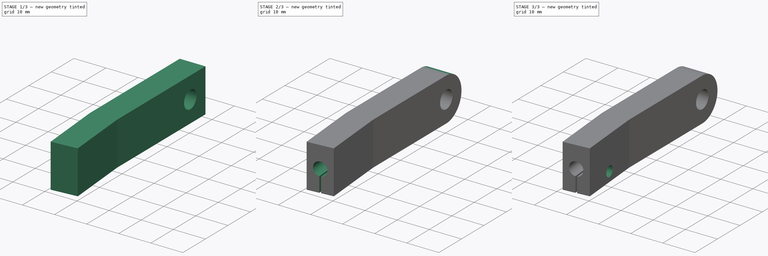
[diagram: build sequence overview — one tinted view per stage of 3, left to right]
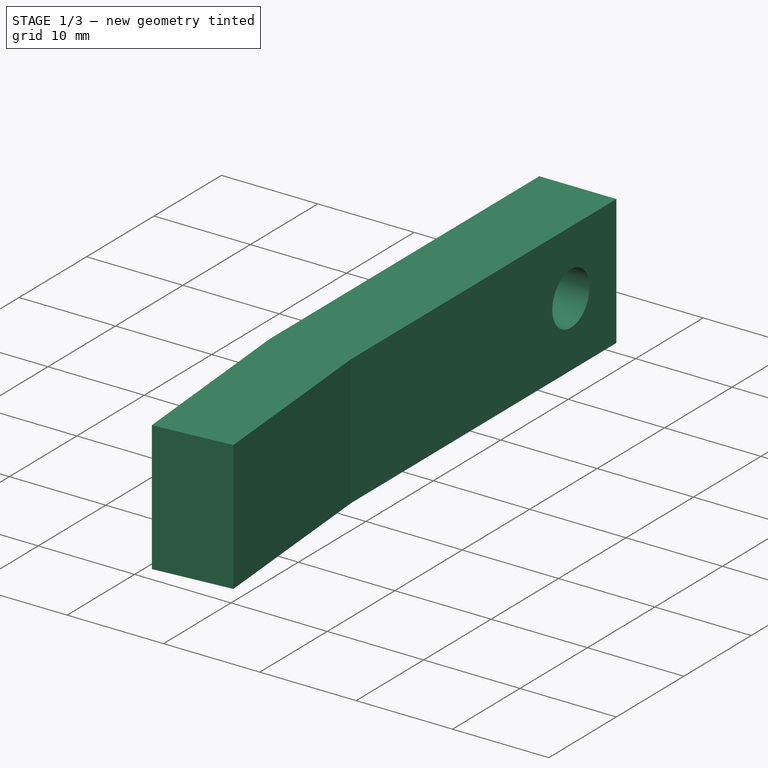
[diagram: stage 1 of 3 — iso view after this stage's code; geometry added in this stage tinted green]
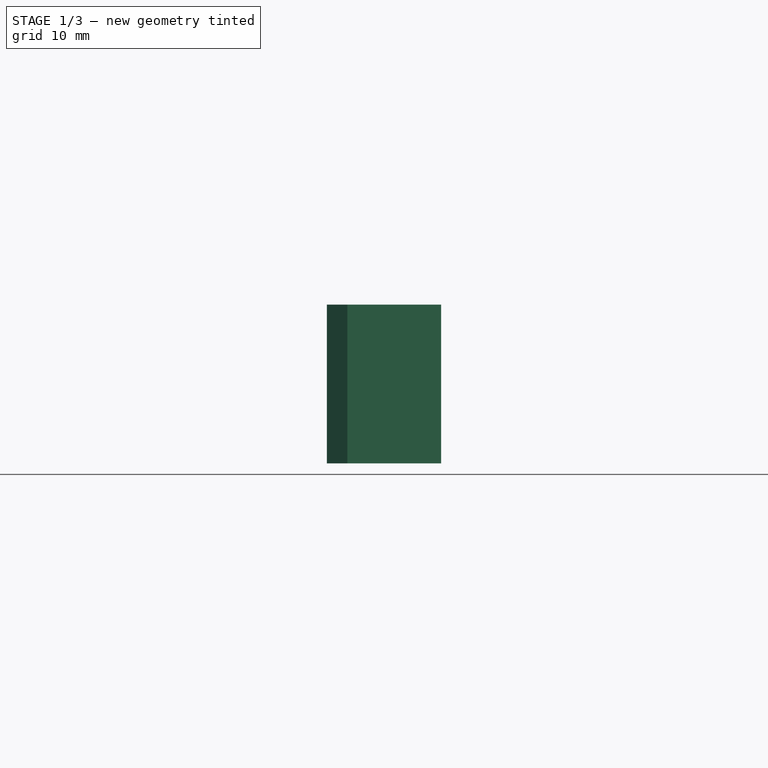
[diagram: stage 1 of 3 — front view after this stage's code; geometry added in this stage tinted green]
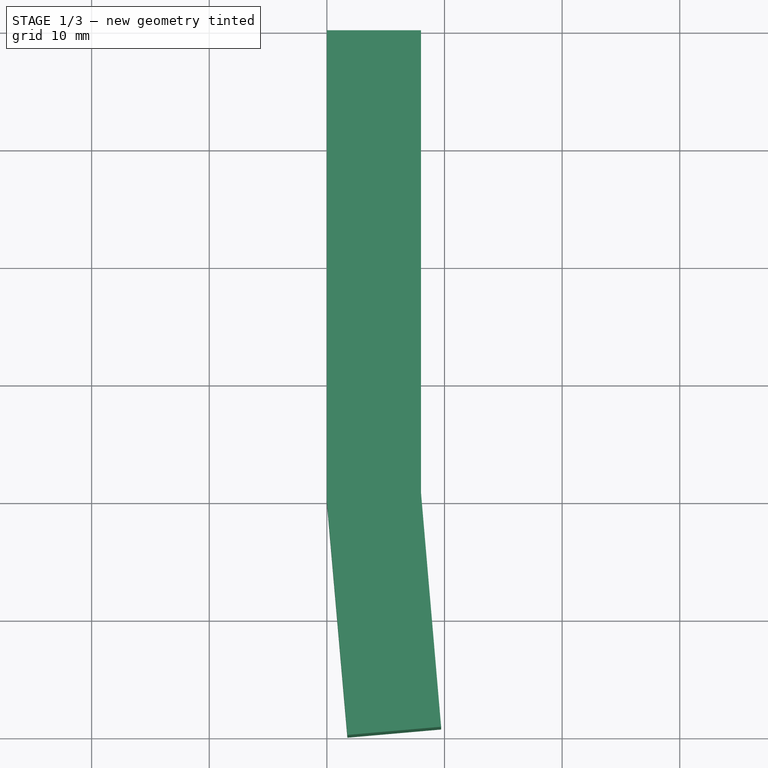
[diagram: stage 1 of 3 — top view after this stage's code; geometry added in this stage tinted green]
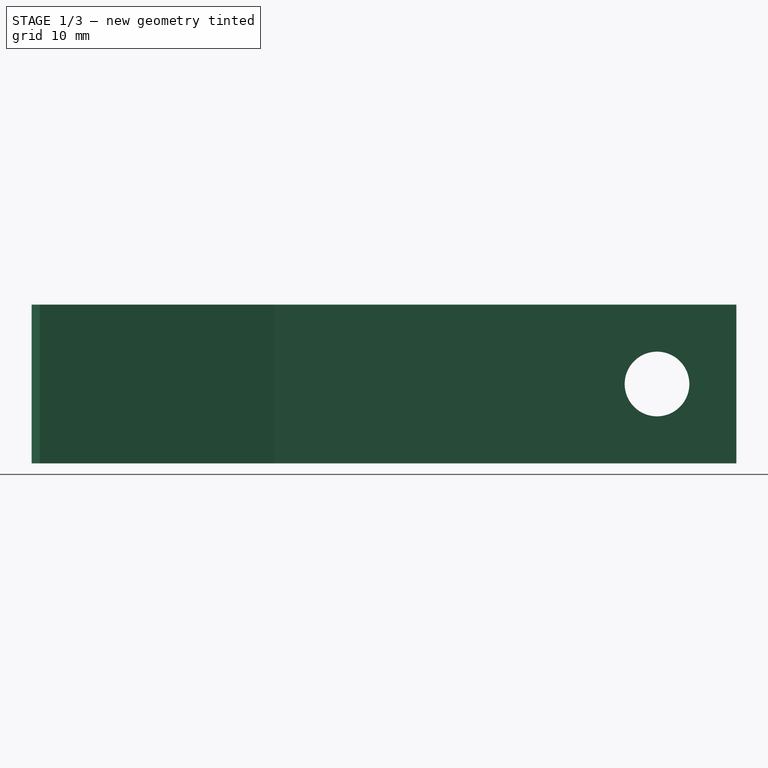
[diagram: stage 1 of 3 — right view after this stage's code; geometry added in this stage tinted green]
FCSTD DOCUMENT  (FreeCAD 1.0R39319 (Git))
Label: giant_front_fender_replace
License: All rights reserved
LicenseURL: https://en.wikipedia.org/wiki/All_rights_reserved
objects: Sketcher::SketchObject×6, PartDesign::Pocket×5, Spreadsheet::Sheet×1, PartDesign::Pad×1, PartDesign::Body×1
note: 31 computed .brp shape members not serialized (recipe doc carries the construction recipe); baked Part::Feature solids carry a one-line shape summary decoded from their .brp

FEATURE [Spreadsheet::Sheet] Spreadsheet  label="settings"
  cells = A1='Front section length; B1(FrontSectionLength)=40; C1='Mount hole diameter; D1(MountHoleDia)=5.5; E1='Rod hole diameter; F1(RodHoleDia)=4.2; G1='Rod tension hole X; H1(RodTensionHoleX)=10; A2='Front section width; B2(FrontSectionWidth)=8; E2='Rod hole Gap; F2(RodHoleGap)=0.5; G2='Rod tension hole Y; H2(RodTensionHoleY)=3; A3='Back section length; B3(BackSectionLength)=20; G3='Rod tension hole diameter; H3(RodTensionHoleDiameter)=3.2; A4='Back section width; B4(BackSectionWidth)=8; G4='Rod tension hex diameter; H4(RodTensionHexDiameter)=5.8; A5='Back section fillet; B5(BackFillet)=2; G5='Rod tension hex depth; H5(RodTensionHexDepth)=2.5; A6='Wall thickness; B6(WallThickness)=4; A7='Front to back angle; B7(FrontToBackAngle)=175; A10='Calculations; A11='Height; B11(Height)==WallThickness * 2 + MountHoleDia; C11='Mount fillet; D11(MountFillet)==WallThickness
FEATURE [Sketcher::SketchObject] Sketch
  ArcFitTolerance = 1e-06
  AttachmentSupport = -> [XY_Plane]
  FullyConstrained = true
  MakeInternals = false
  MapMode = 5
  expr: Constraints[10] = Spreadsheet.FrontSectionWidth
  expr: Constraints[11] = Spreadsheet.FrontSectionLength
  expr: Constraints[12] = Spreadsheet.FrontToBackAngle
  expr: Constraints[13] = Spreadsheet.BackSectionLength
  expr: Constraints[15] = Spreadsheet.BackSectionWidth
  expr: Constraints[18] = 90
  sketch-geometry (7):
    g0: LineSegment StartX=0 StartY=0 StartZ=0 EndX=0 EndY=-40 EndZ=0
    g1: LineSegment StartX=0 StartY=-40 StartZ=0 EndX=1.74311 EndY=-59.9239 EndZ=0
    g2: LineSegment StartX=1.74311 StartY=-59.9239 StartZ=0 EndX=9.71267 EndY=-59.2266 EndZ=0
    g3: LineSegment StartX=9.71267 StartY=-59.2266 StartZ=0 EndX=8 EndY=-39.3001 EndZ=0
    g4: LineSegment StartX=8 StartY=-39.3001 StartZ=0 EndX=8 EndY=0 EndZ=0
    g5: LineSegment StartX=8 StartY=0 StartZ=0 EndX=0 EndY=0 EndZ=0
    g6: LineSegment [constr] StartX=0 StartY=-40 StartZ=0 EndX=8 EndY=-39.3001 EndZ=0
  constraints (19):
    c: Coincident(g-1,g0)
    c: PointOnObject(g0,g-2)
    c: Coincident(g0,g1)
    c: Coincident(g1,g2)
    c: Coincident(g2,g3)
    c: Coincident(g3,g4)
    c: PointOnObject(g4,g-1)
    c: Vertical(g4)
    c: Coincident(g4,g5)
    c: Coincident(g5,g0)
    c: DistanceX(g5,g5) = 8
    c: DistanceY(g0,g0) = 40
    c: Angle(g1,g0) = 3.05433
    c: Distance(g1) = 20
    c: Angle(g2,g1) = 1.5708
    c: Distance(g2) = 8
    c: Coincident(g6,g0)
    c: Coincident(g6,g3)
    c: Angle(g1,g6) = 1.5708
FEATURE [PartDesign::Pad] Pad  label="MainBody"
  Direction = (0,0,1)
  Length = 13.5
  Length2 = 10
  Profile = -> Sketch
  ReferenceAxis = -> Sketch [N_Axis]
  Refine = true
  Suppressed = false
  Type = 0
  expr: Length = Spreadsheet.Height
FEATURE [Sketcher::SketchObject] Sketch001
  ArcFitTolerance = 1e-06
  AttachmentSupport = -> [Pad]
  FullyConstrained = true
  MakeInternals = false
  MapMode = 5
  Placement = pos=(0,0,0) rot=(0.57735,-0.57735,-0.57735;2.0944rad)
  expr: Constraints[10] = Spreadsheet.MountHoleDia / 2 + Spreadsheet.WallThickness
  expr: Constraints[12] = Spreadsheet.MountHoleDia
  sketch-geometry (5):
    g0: LineSegment [constr] StartX=0 StartY=0 StartZ=0 EndX=6.75 EndY=0 EndZ=0
    g1: LineSegment [constr] StartX=6.75 StartY=0 StartZ=0 EndX=6.75 EndY=6.75 EndZ=0
    g2: LineSegment [constr] StartX=6.75 StartY=6.75 StartZ=0 EndX=0 EndY=6.75 EndZ=0
    g3: LineSegment [constr] StartX=0 StartY=6.75 StartZ=0 EndX=0 EndY=0 EndZ=0
    g4: Circle CenterX=6.75 CenterY=6.75 CenterZ=0 NormalX=0 NormalY=0 NormalZ=1 AngleXU=0 Radius=2.75
  constraints (13):
    c: Coincident(g0,g1)
    c: Coincident(g1,g2)
    c: Coincident(g2,g3)
    c: Coincident(g3,g0)
    c: Horizontal(g0)
    c: Horizontal(g2)
    c: Vertical(g1)
    c: Vertical(g3)
    c: Coincident(g0,g-1)
    c: Equal(g1,g2)
    c: DistanceX(g0,g0) = 6.75
    c: Coincident(g4,g1)
    c: Diameter(g4) = 5.5
FEATURE [PartDesign::Pocket] Pocket  label="FrameMountHole"
  BaseFeature = -> Pad
  Direction = (1,0,0)
  Length = 5
  Length2 = 5
  Profile = -> Sketch001
  ReferenceAxis = -> Sketch001 [N_Axis]
  Refine = true
  Suppressed = false
  Type = 1
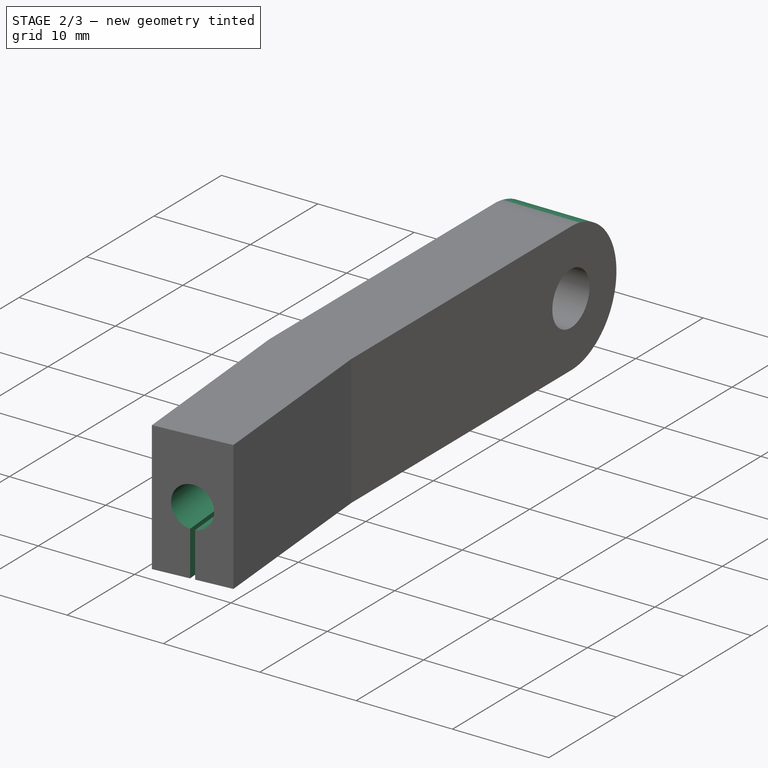
[diagram: stage 2 of 3 — iso view after this stage's code; geometry added in this stage tinted green]
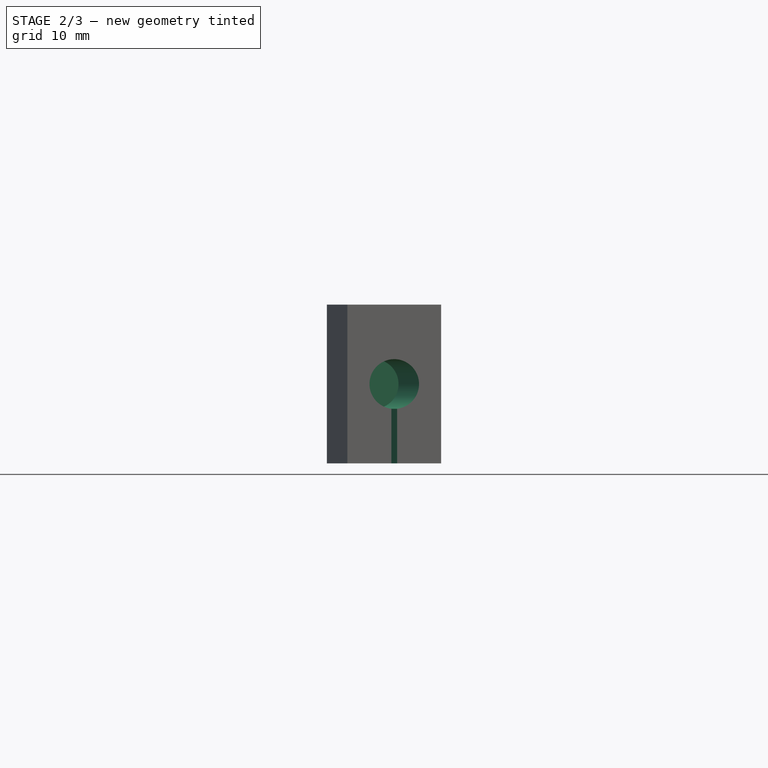
[diagram: stage 2 of 3 — front view after this stage's code; geometry added in this stage tinted green]
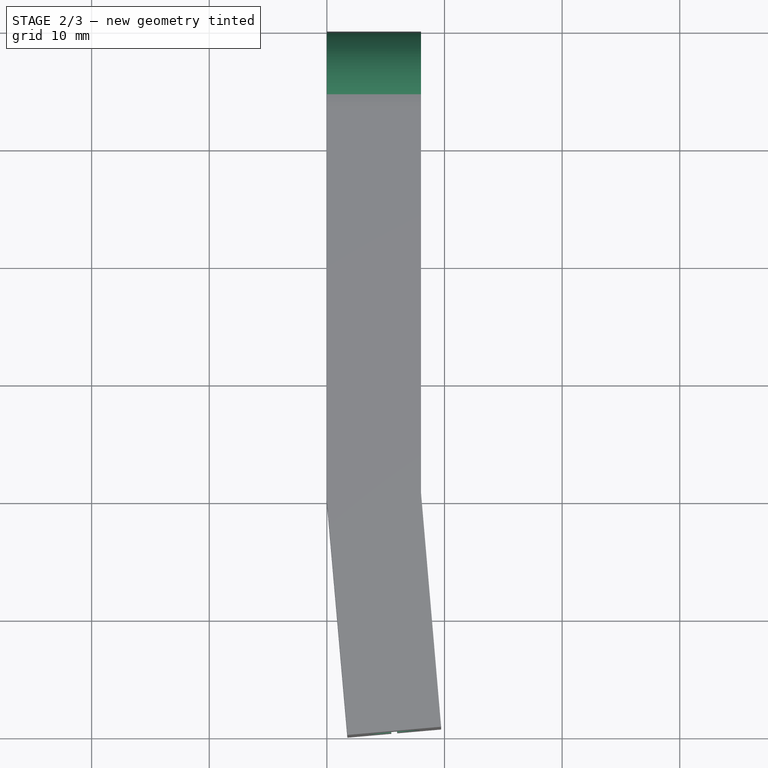
[diagram: stage 2 of 3 — top view after this stage's code; geometry added in this stage tinted green]
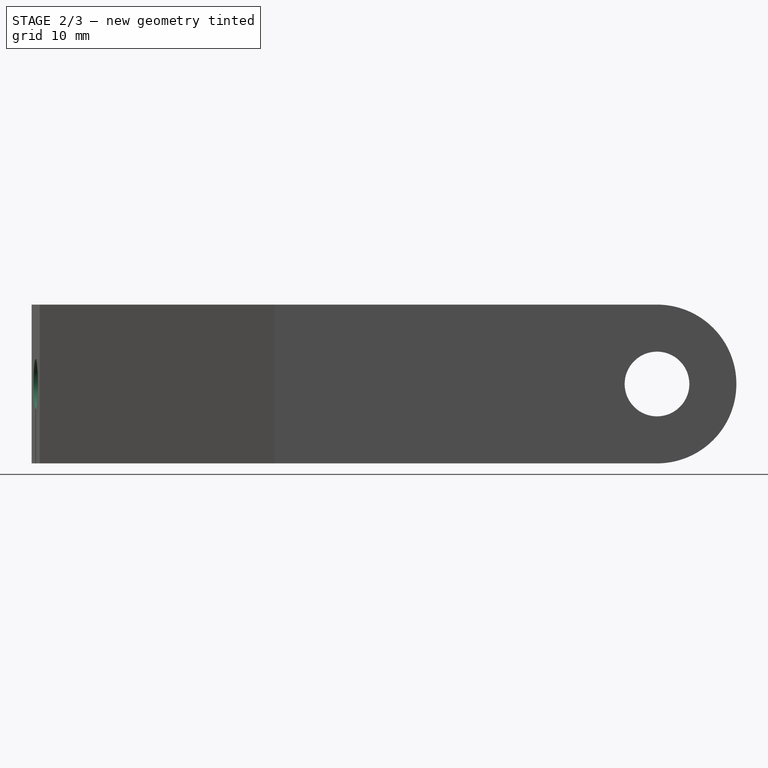
[diagram: stage 2 of 3 — right view after this stage's code; geometry added in this stage tinted green]
FEATURE [Sketcher::SketchObject] Sketch002
  ArcFitTolerance = 1e-06
  AttachmentSupport = -> [Pocket]
  ExternalGeometry = -> [Pocket]
  FullyConstrained = true
  MakeInternals = false
  MapMode = 5
  Placement = pos=(0,0,0) rot=(0.57735,-0.57735,-0.57735;2.0944rad)
  sketch-geometry (6):
    g0: LineSegment StartX=0 StartY=13.5 StartZ=0 EndX=0 EndY=6.75 EndZ=0
    g1: LineSegment StartX=0 StartY=13.5 StartZ=0 EndX=6.75 EndY=13.5 EndZ=0
    g2: LineSegment StartX=0 StartY=0 StartZ=0 EndX=0 EndY=6.75 EndZ=0
    g3: LineSegment StartX=0 StartY=0 StartZ=0 EndX=6.75 EndY=0 EndZ=0
    g4: ArcOfCircle CenterX=6.75 CenterY=6.75 CenterZ=0 NormalX=0 NormalY=0 NormalZ=1 AngleXU=0 Radius=6.75 StartAngle=1.5708 EndAngle=3.14159
    g5: ArcOfCircle CenterX=6.75 CenterY=6.75 CenterZ=0 NormalX=0 NormalY=0 NormalZ=1 AngleXU=0 Radius=6.75 StartAngle=3.14159 EndAngle=4.71239
  constraints (19):
    c: Coincident(g0,g-3)
    c: Coincident(g1,g0)
    c: Coincident(g2,g-1)
    c: Coincident(g3,g2)
    c: Vertical(g0,g0)
    c: Vertical(g2,g2)
    c: Horizontal(g3,g2)
    c: Horizontal(g1,g0)
    c: Equal(g1,g0)
    c: Equal(g2,g1)
    c: Equal(g1,g3)
    c: Horizontal(g2,g5)
    c: Vertical(g5,g3)
    c: Coincident(g5,g2)
    c: Vertical(g5,g3)
    c: Horizontal(g4,g0)
    c: Vertical(g4,g1)
    c: Coincident(g4,g0)
    c: Coincident(g4,g-4)
FEATURE [PartDesign::Pocket] Pocket001  label="FrameMountHoleFillet"
  BaseFeature = -> Pocket
  Direction = (1,0,0)
  Length = 5
  Length2 = 5
  Profile = -> Sketch002
  ReferenceAxis = -> Sketch002 [N_Axis]
  Refine = true
  Suppressed = false
  Type = 1
FEATURE [Sketcher::SketchObject] Sketch003
  ArcFitTolerance = 1e-06
  AttachmentSupport = -> [Pocket001]
  ExternalGeometry = -> [Pocket001]
  FullyConstrained = true
  MakeInternals = false
  MapMode = 5
  Placement = pos=(5.21608,-59.62,0) rot=(0.998099,0.043578,0.043578;1.5727rad)
  expr: Constraints[2] = Spreadsheet.RodHoleGap
  expr: Constraints[5] = Spreadsheet.RodHoleDia / 2
  sketch-geometry (6):
    g0: GeomPoint X=0.51377 Y=6.75 Z=0
    g1: ArcOfCircle CenterX=0.51377 CenterY=6.75 CenterZ=0 NormalX=0 NormalY=0 NormalZ=1 AngleXU=0 Radius=2.11483 StartAngle=4.83088 EndAngle=10.8771
    g2: LineSegment [constr] StartX=0.51377 StartY=6.75 StartZ=0 EndX=0.51377 EndY=4.65 EndZ=0
    g3: LineSegment StartX=0.26377 StartY=4.65 StartZ=0 EndX=0.26377 EndY=0 EndZ=0
    g4: LineSegment StartX=0.76377 StartY=4.65 StartZ=0 EndX=0.76377 EndY=0 EndZ=0
    g5: LineSegment StartX=0.26377 StartY=0 StartZ=0 EndX=0.76377 EndY=0 EndZ=0
  constraints (15):
    c: Symmetric(g-3,g-4,g0)
    c: Coincident(g1,g0)
    c: DistanceX(g1,g1) = 0.5
    c: Coincident(g2,g0)
    c: Vertical(g2)
    c: DistanceY(g2,g2) = 2.1
    c: Symmetric(g1,g1,g2)
    c: Vertical(g5,g1)
    c: Vertical(g5,g1)
    c: Horizontal(g5,g-4)
    c: Horizontal(g5,g-4)
    c: Coincident(g3,g5)
    c: Coincident(g3,g1)
    c: Coincident(g4,g5)
    c: Coincident(g4,g1)
FEATURE [PartDesign::Pocket] Pocket002  label="RodHoleAndTensionGap"
  BaseFeature = -> Pocket001
  Direction = (-0.0871557,0.996195,0)
  Length = 20
  Length2 = 5
  Profile = -> Sketch003
  ReferenceAxis = -> Sketch003 [N_Axis]
  Refine = true
  Suppressed = false
  Type = 0
  expr: Length = Spreadsheet.BackSectionLength
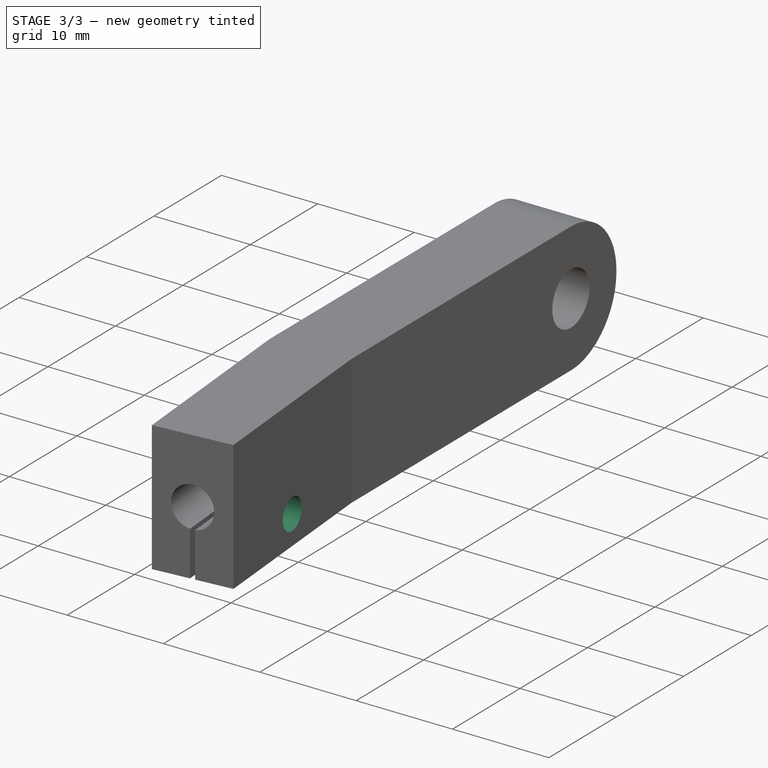
[diagram: stage 3 of 3 — iso view after this stage's code; geometry added in this stage tinted green]
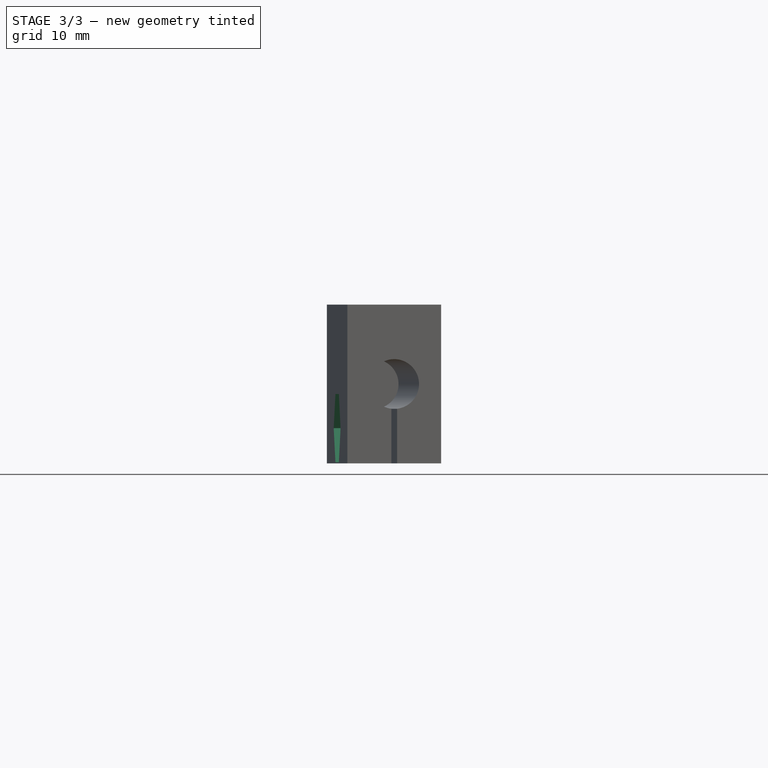
[diagram: stage 3 of 3 — front view after this stage's code; geometry added in this stage tinted green]
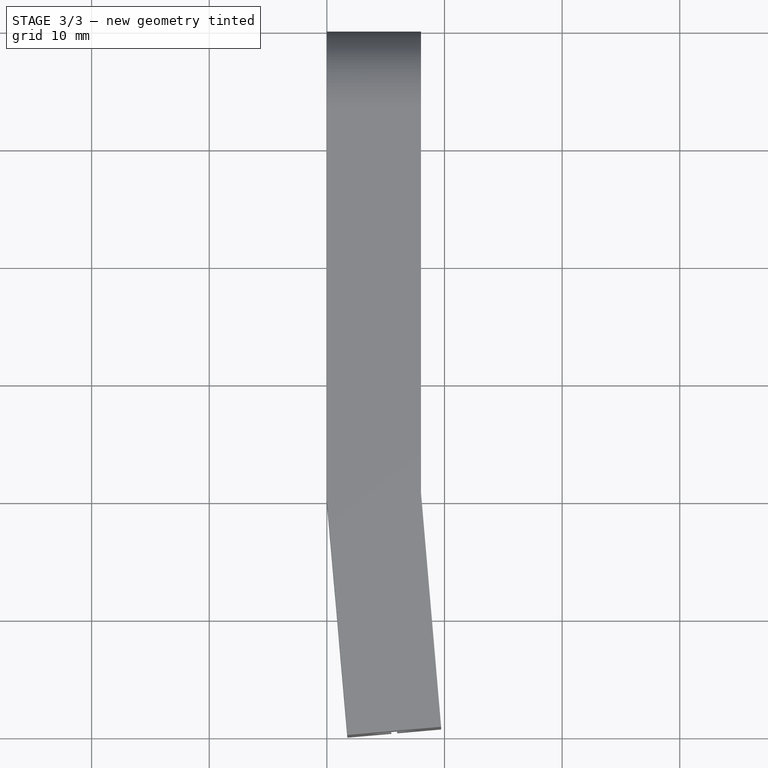
[diagram: stage 3 of 3 — top view after this stage's code; geometry added in this stage tinted green]
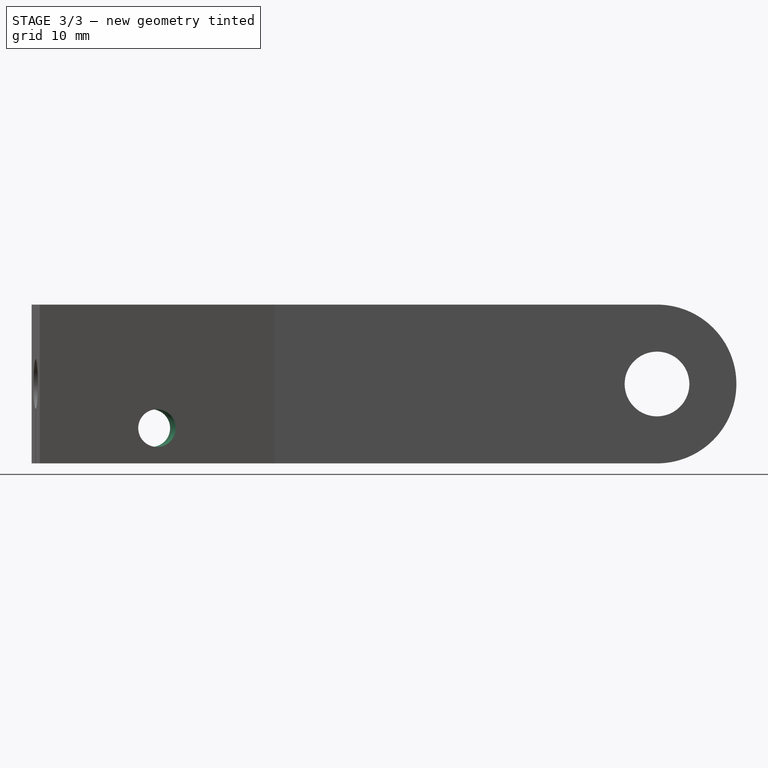
[diagram: stage 3 of 3 — right view after this stage's code; geometry added in this stage tinted green]
FEATURE [Sketcher::SketchObject] Sketch004
  ArcFitTolerance = 1e-06
  AttachmentSupport = -> [Pocket002]
  ExternalGeometry = -> [Pocket002]
  FullyConstrained = true
  MakeInternals = false
  MapMode = 5
  Placement = pos=(-3.47296,-0.303845,0) rot=(0.610924,-0.559809,-0.559809;2.04477rad)
  expr: Constraints[0] = Spreadsheet.RodTensionHoleX
  expr: Constraints[1] = Spreadsheet.RodTensionHoleY
  expr: Constraints[2] = Spreadsheet.RodTensionHoleDiameter
  sketch-geometry (1):
    g0: Circle CenterX=49.8478 CenterY=3 CenterZ=0 NormalX=0 NormalY=0 NormalZ=1 AngleXU=0 Radius=1.6
  constraints (3):
    c: DistanceX(g0,g-3) = 10
    c: DistanceY(g-3,g0) = 3
    c: Diameter(g0) = 3.2
FEATURE [PartDesign::Pocket] Pocket003  label="RodTensionScrewHole"
  BaseFeature = -> Pocket002
  Direction = (0.996195,0.0871557,2e-16)
  Length = 5
  Length2 = 5
  Profile = -> Sketch004
  ReferenceAxis = -> Sketch004 [N_Axis]
  Refine = true
  Suppressed = false
  Type = 1
FEATURE [Sketcher::SketchObject] Sketch005
  ArcFitTolerance = 1e-06
  AttachmentSupport = -> [Pocket003]
  ExternalGeometry = -> [Pocket003]
  FullyConstrained = true
  MakeInternals = false
  MapMode = 5
  Placement = pos=(-3.47296,-0.303845,0) rot=(0.610924,-0.559809,-0.559809;2.04477rad)
  expr: Constraints[19] = Spreadsheet.RodTensionHexDiameter
  sketch-geometry (7):
    g0: LineSegment StartX=53.1964 StartY=3 StartZ=0 EndX=51.5221 EndY=5.9 EndZ=0
    g1: LineSegment StartX=51.5221 StartY=5.9 StartZ=0 EndX=48.1735 EndY=5.9 EndZ=0
    g2: LineSegment StartX=48.1735 StartY=5.9 StartZ=0 EndX=46.4992 EndY=3 EndZ=0
    g3: LineSegment StartX=46.4992 StartY=3 StartZ=0 EndX=48.1735 EndY=0.1 EndZ=0
    g4: LineSegment StartX=48.1735 StartY=0.1 StartZ=0 EndX=51.5221 EndY=0.1 EndZ=0
    g5: LineSegment StartX=51.5221 StartY=0.1 StartZ=0 EndX=53.1964 EndY=3 EndZ=0
    g6: Circle [constr] CenterX=49.8478 CenterY=3 CenterZ=0 NormalX=0 NormalY=0 NormalZ=1 AngleXU=0 Radius=3.34863
  constraints (16):
    c: Coincident(g0,g1)
    c: Coincident(g1,g2)
    c: Coincident(g2,g3)
    c: Coincident(g3,g4)
    c: Coincident(g4,g5)
    c: Coincident(g5,g0)
    c: Equal(g0, g1-g5) x5
    c: PointOnObject(g0,g6)
    c: PointOnObject(g1,g6)
    c: PointOnObject(g2,g6)
    c: PointOnObject(g3,g6)
    c: PointOnObject(g4,g6)
    c: PointOnObject(g5,g6)
    c: Horizontal(g4)
    c: Coincident(g6,g-3)
    c: DistanceY(g3,g1) = 5.8
FEATURE [PartDesign::Pocket] Pocket004  label="RodTensionHexHole"
  BaseFeature = -> Pocket003
  Direction = (0.996195,0.0871557,2e-16)
  Length = 2.5
  Length2 = 5
  Profile = -> Sketch005
  ReferenceAxis = -> Sketch005 [N_Axis]
  Refine = true
  Suppressed = false
  Type = 0
  expr: Length = Spreadsheet.RodTensionHexDepth
FEATURE [PartDesign::Body] Body
  AllowCompound = false
  Group = -> [Sketch,Pad,Sketch001,Pocket,Sketch002,Pocket001,Sketch003,Pocket002,Sketch004,Pocket003,Sketch005,Pocket004]
  Origin = -> Origin
  Tip = -> Pocket004
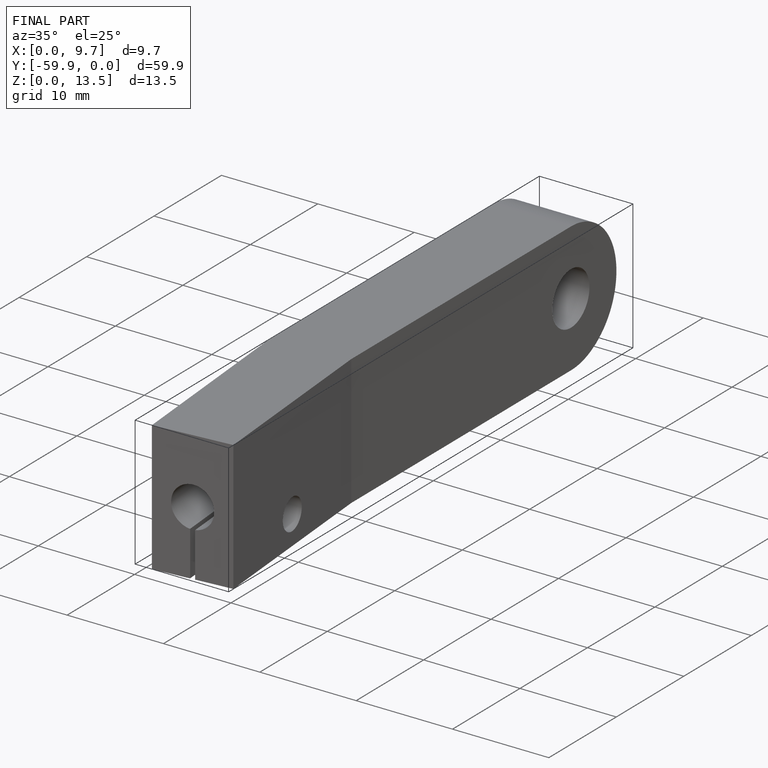
[diagram: finished part — iso view with bounding-box wireframe]
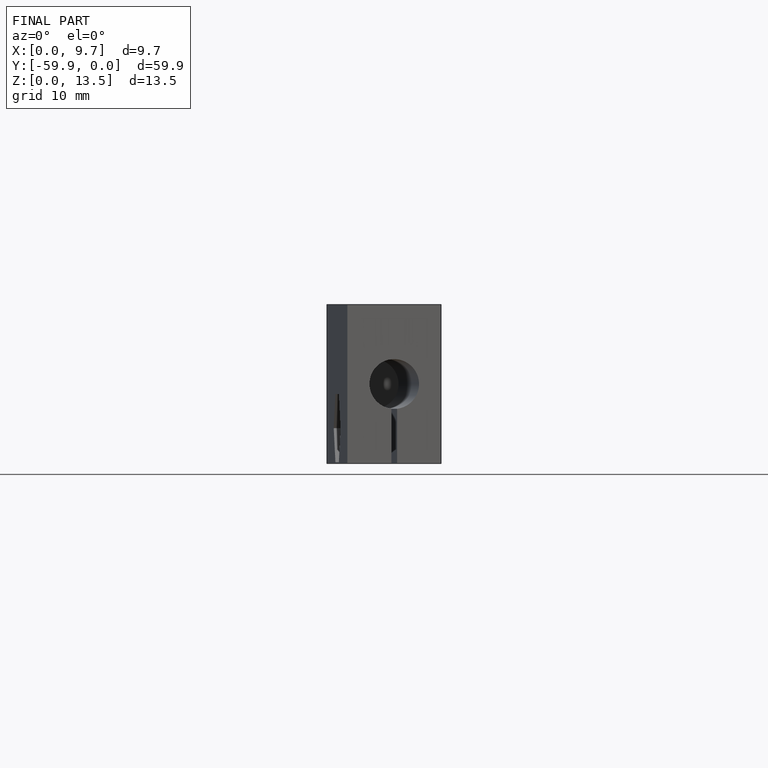
[diagram: finished part — front view with bounding-box wireframe]
